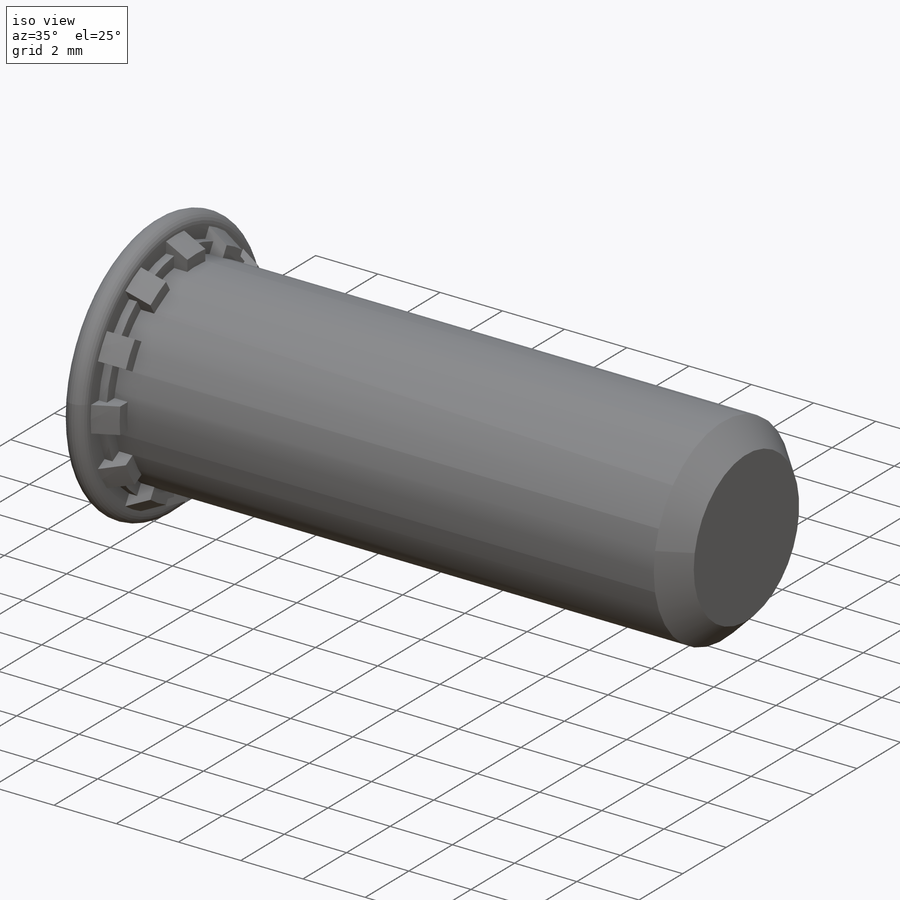
[diagram: iso view]
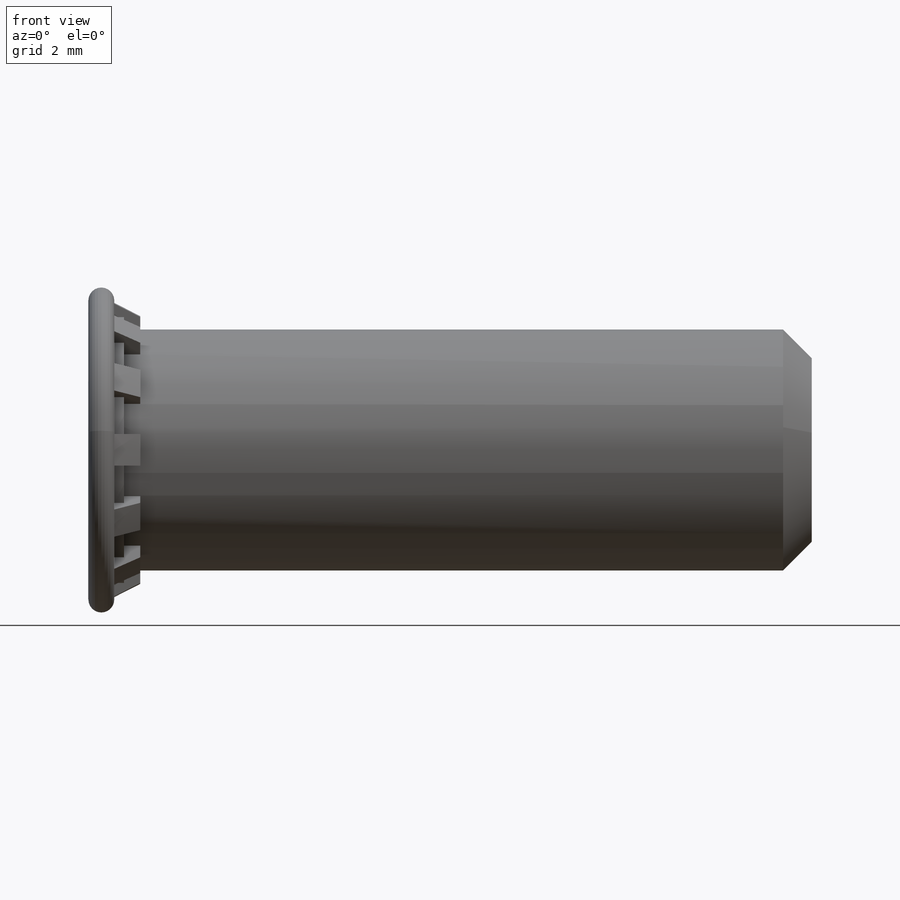
[diagram: front view]
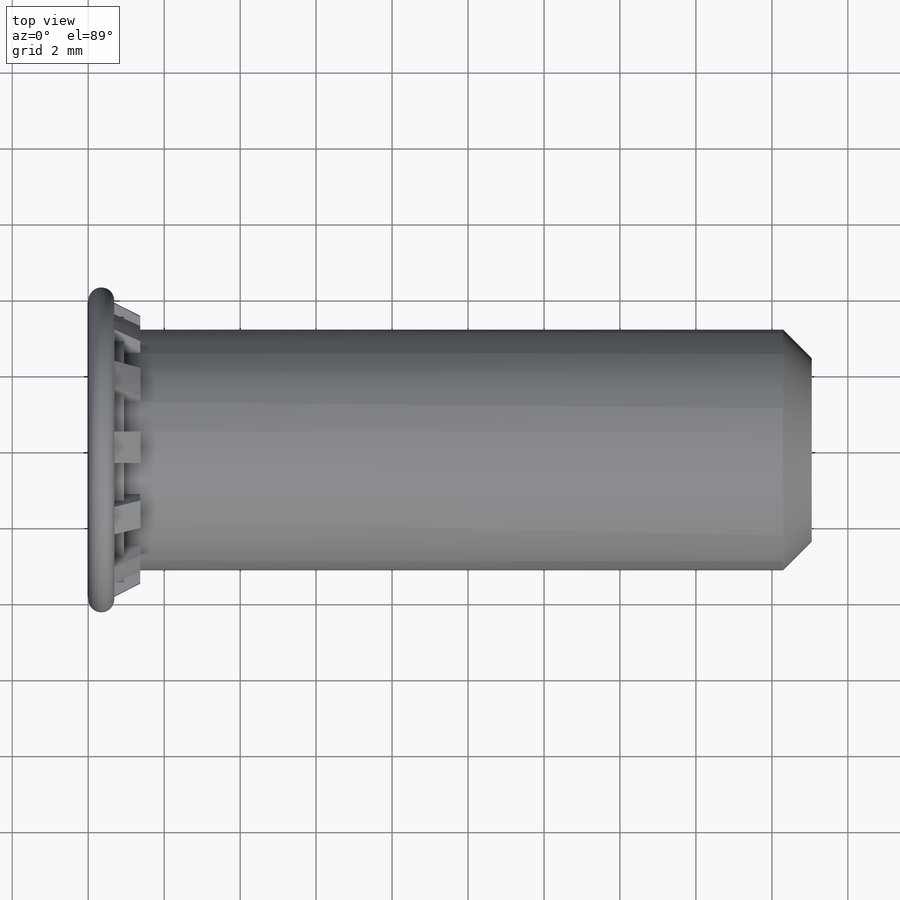
[diagram: top view]
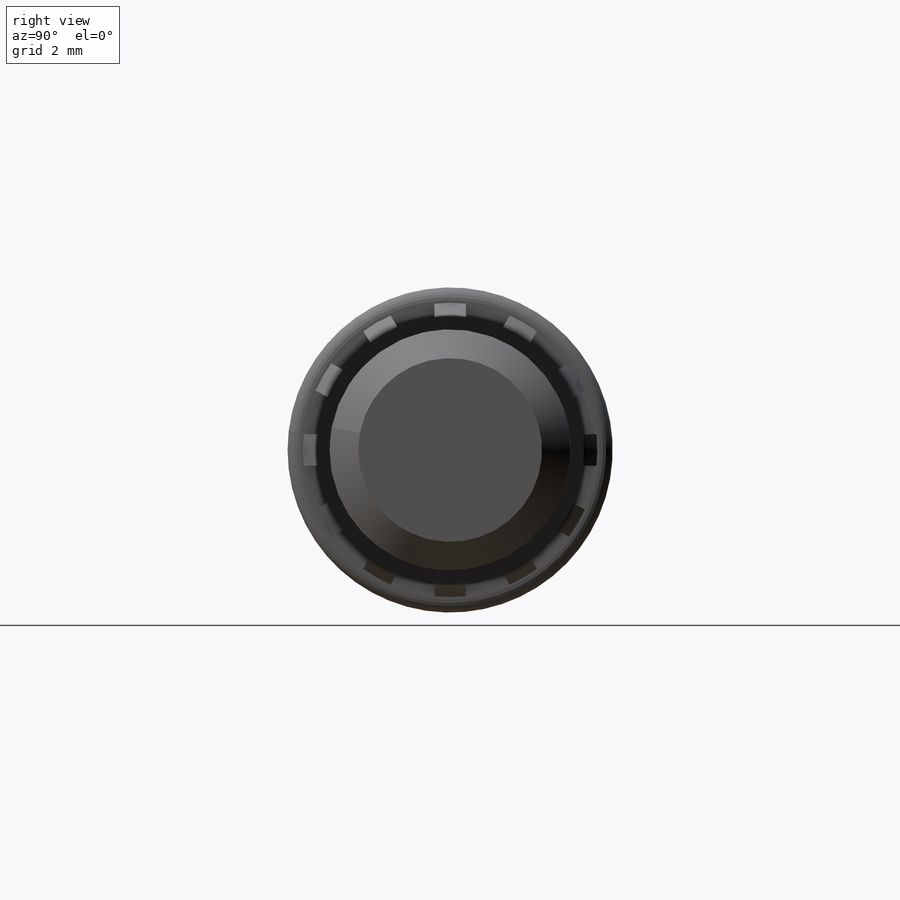
[diagram: right view]
SOLIDWORKS PART (.sldprt)
format: sldprt  version: not decoded by parser v0  size: 848,384 bytes
history: native  units: mm
features: sketch x4, plane x3, cut_extrude x2, material x1, revolve x1, thread x1, cut_revolve x1, pattern_linear x1, pattern_circular x1 (+9 scaffold rows collapsed)
feature tree (24):
  scaffold x9  (default folders/planes/origin — collapsed)
  material  "Material <not specified>"
  plane  "Plane1"
  plane  "Plane2"
  plane  "Plane3"
  sketch  "BodySke"  dims[c1.Head_fillet_rad=1.016mm c2.Head_fillet_rad=0.3429mm c2.D1=19.05mm c2.Diameter=25.4mm c2.D3=50.8mm c2.D4=22.225mm c3.D4=45.0deg c3.D5=22.225mm c3.Head_ht=25.4mm c3.Length=76.2mm c3.D8=9.525mm c4.D8=45.0deg c4.D1=9.525mm c5.D8=9.525mm c6.D8=45.0deg c6.D1=73.025mm c7.D1=45.0deg c8.D1=9.525mm c9.D1=45.0deg c9.D4=22.225mm c10.D4=45.0deg c10.Thread_min=12.7mm c11.D4=9.525mm c11.Body_ch_ang=45.0deg c11.D8=22.225mm c12.D8=45.0deg c12.D5=22.225mm c13.D5=45.0deg c14.D5=~4.490128mm c15.D5=45.0deg c15.Head_dia=50.8mm c16.D5=~8.980256mm c16.Head_ch_ang=45.0deg c16.Head_side_ht=22.86mm c16.D9=19.05mm c16.Diameter=25.4mm c16.Head_dia=38.1mm c16.Minor_dia=22.86mm c17.Head_dia=48.006mm c17.D1=0.127mm c17.D2=~17.32023mm c17.Head_ang=82.0deg c17.Length=19.05mm c17.Head_ht=13.716mm c18.D1=0.127mm c18.Advance=2.1082mm c18.Thread_nom=25.4mm c18.Thread_lim=~60.962186mm c18.H_dia=8.5598mm c18.Shoulder_lower_dia=7.747mm c18.Shoulder_upper_dia=7.0485mm c18.D5=~13.129614mm c19.D1=~2.253866mm c20.D1=~179.775312deg c21.D1=~0.00508mm c21.D2=~0.00508mm c21.Shoulder_ht=1.3716mm c21.Advance=1.27mm c21.Minor_dia=4.8387mm c21.Diameter=6.35mm c21.T_dim=0.6858mm c22.T_dim=0.6858mm]
  revolve  "BaseBody"  [1 undecoded]
  thread  "ThreadCosmetic"  Diameter=15.621mm Thread_length=15.621mm Thread_minor=4.8387mm Shoulder_lower_dia=7.747mm Shoulder_upper_dia=7.0485mm Minor_dia=4.8387mm  [1 undecoded]
  sketch  "ThdSchSke"  dims[c1.Thread_minor=~1.03886mm c1.Diameter=~1.413535mm c1.Start=~0.988134mm c1.D4=~4.446753mm c1.Vee=60.0deg c2.Thread_minor=~1.03886mm c2.Start=~2.540025mm c2.D1=~0.108159mm c2.D2=~0.108159mm c3.D1=~0.216319mm c3.SideAngle=55.0deg c3.D2=~0.216319mm c3.VeeAngle=70.0deg c3.Thread_minor=4.8387mm c3.Overcut=7.9375mm c3.Diameter=6.35mm c3.D6=~8.326268mm c4.D1=~8.326268mm c5.D1=90.0deg c5.Start=63.5mm c6.Start=~50.800025mm c7.Start=3.429mm]
  cut_revolve  "ThreadSchematic"  Angle=360deg
  pattern_linear  "ThdSchPat"  Count1=13 Count2=1 Spacing1=1.201615mm Spacing2=50mm Num_threads=13 Advance=1.201615mm
  sketch  "RibCut1Ske"  dims[Inner_dia=6.35mm Outer_dia=8.5598mm D1=~4.978446mm Rib_root_half_angle=7.5deg D2=3.175mm Rib_root_gap_angle=15.0deg D3=~1.145061mm Angle=30.0deg]
  cut_extrude  "RibCut1"  Depth=0.428625mm
  sketch  "RibCut2Ske"  dims[c1.Inner_dia=7.0485mm c1.Outer_dia=8.5598mm c1.D5=~3.823091mm c1.Rib_root_dia=6.35mm c1.D3=~5.016373mm c1.Rib_root_half_angle=7.5deg c1.D4=~3.166535mm c1.Rib_root_gap_angle=15.0deg c2.D5=~1.11712mm c2.Angle=30.0deg c2.D1=~1.118824mm c3.Angle=30.0deg c3.D1=~5.016373mm c3.Rib_root_half_angle=7.5deg c4.D1=~2.989393mm c4.Rib_root_gap_angle=15.0deg c5.D1=~1.811756mm c5.Angle=30.0deg]
  cut_extrude  "RibCut2"  Depth=0.6858mm
  pattern_circular  "RibCutsPat"  Count=12 Angle=30deg Num_ribs=12
decode coverage: 10 of 11 modeling features carry decoded parameters
note: ~ marks probable driven/reference dimensions
note: 2 parameter values undecoded
note: suppression state not decoded; provenance and decode notes live in map.json
